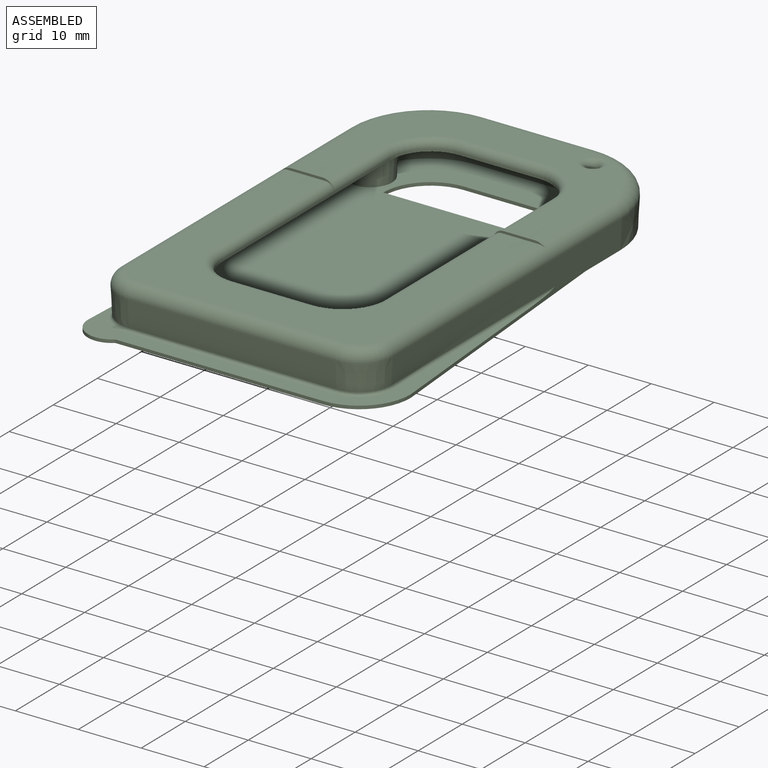
[diagram: assembled view]
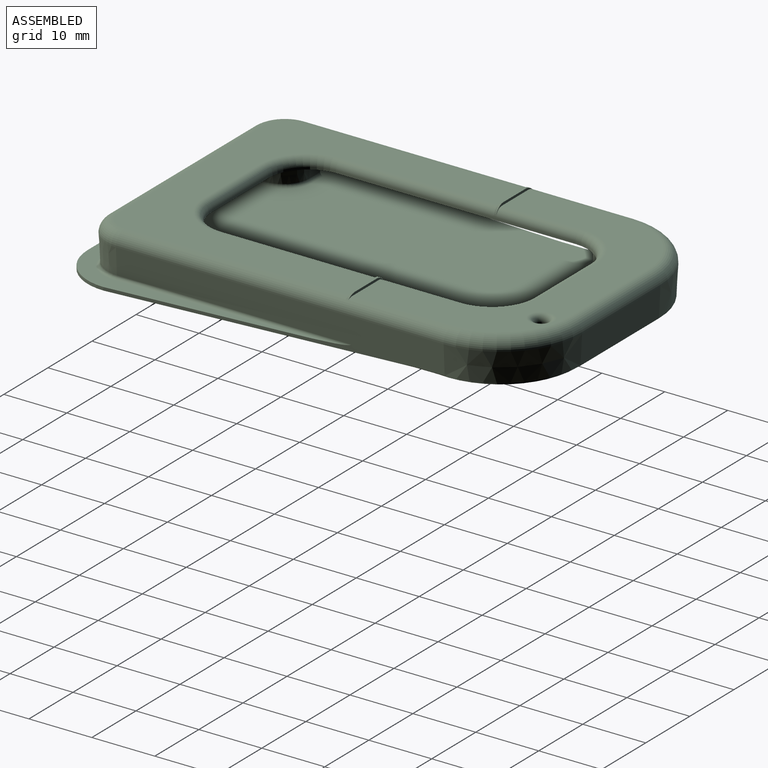
[diagram: assembled view, second angle]
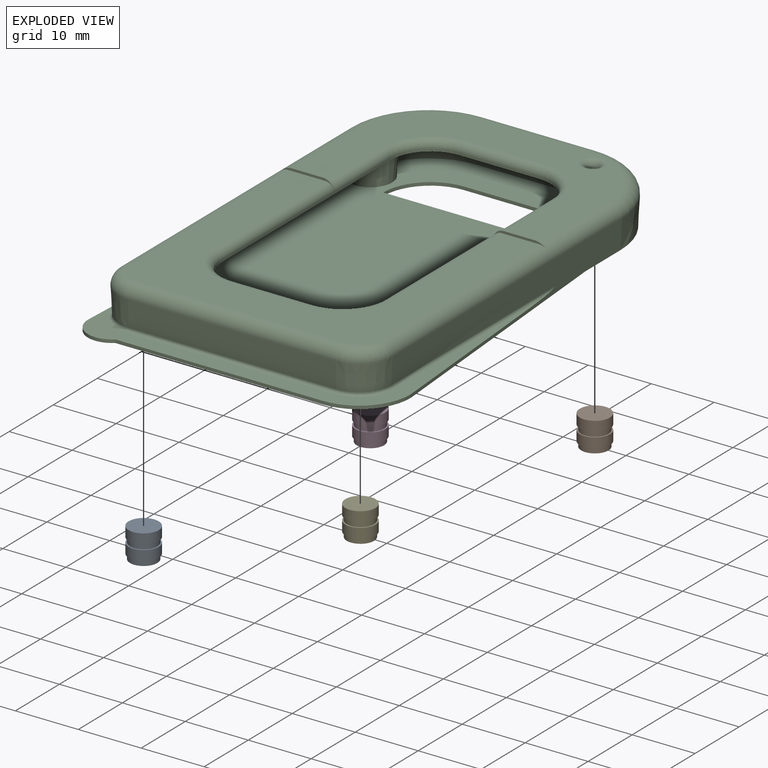
[diagram: exploded view]
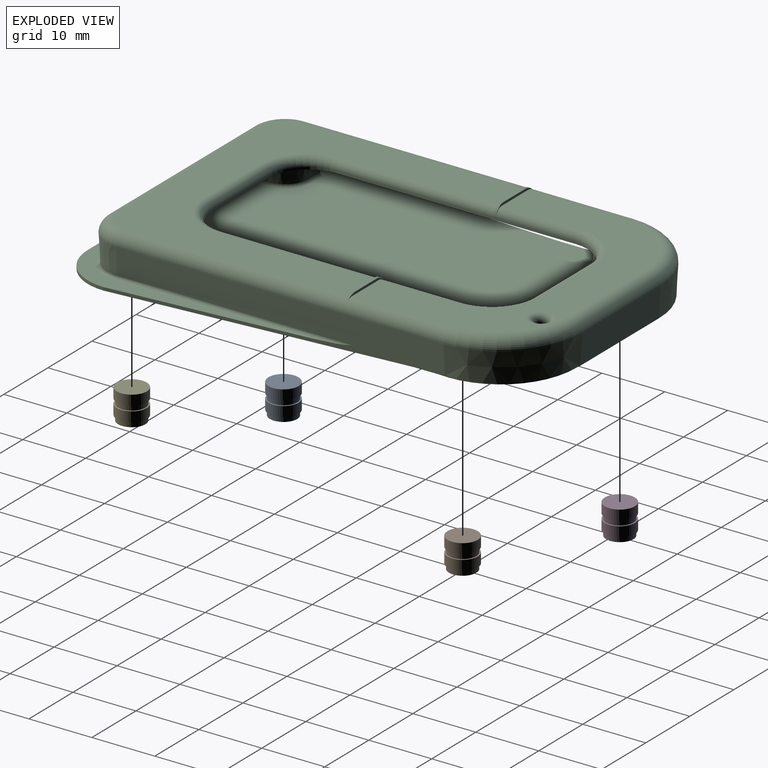
[diagram: exploded view, second angle]
ASSEMBLY  parts=5 mates=4
PART A: 12 faces, bbox 4.8x4.8x4.8 mm
  f0: plane 2.5x2.5mm, normal (0,0,1), area 4.9mm2, adj f10
  f1: plane 4.78x4.78mm, normal (0,0,-1), area 17.9mm2, adj f2
  f2: cylinder r=2.39mm len=4.78mm, axis (0,0,-1), area 23.9mm2, adj f1,f3
  f3: plane 4.78x4.78mm, normal (0,0,1), area 3.2mm2, adj f2,f4
  f4: cylinder r=2.17mm len=4.34mm, axis (0,0,-1), area 10.9mm2, adj f3,f5
  f5: plane 4.78x4.78mm, normal (0,0,-1), area 3.2mm2, adj f4,f6
  f6: cylinder r=2.39mm len=4.78mm, axis (0,0,-1), area 23.9mm2, adj f5,f7
  f7: plane 4.78x4.78mm, normal (0,0,1), area 3.2mm2, adj f6,f8
  f8: cylinder r=2.17mm len=4.34mm, axis (0,0,-1), area 10.9mm2, adj f7,f9
  f9: plane 4.34x4.34mm, normal (0,0,1), area 5.2mm2, adj f8,f11
  f10: cylinder r=1.25mm len=3.7mm, axis (0,0,-1), area 29.1mm2, adj f0,f11
  f11: cone r=1.75mm half-angle=45deg, axis (0,0,1), area 6.7mm2, adj f9,f10
PART B: same geometry as A
PART C: 167 faces, bbox 47.8x75.4x7.7 mm
  f0: plane 39.86x26.85mm, normal (0,0,1), area 464.7mm2, adj f1,f2,f33,f34,f35,f36,f38,f50
  f1: cylinder r=1.27mm len=12.64mm, axis (0,-1,0), area 25.2mm2, adj f0,f48,f51,f147
  f2: cylinder r=1.27mm len=12.64mm, axis (0,1,0), area 25.2mm2, adj f0,f44,f52,f142
  f3: plane 64.82x37.25mm, normal (0,0,-1), area 616.4mm2, adj f61,f63,f91,f92,f93,f94,f95,f96
  f4: plane 73.2x47.61mm, normal (0,0,-1), area 2931.3mm2, adj f69,f70,f71,f72,f73,f75,f76,f77
  f5: plane 71.99x47.61mm, normal (0,0,1), area 2398.9mm2, adj f6,f7,f12,f13,f15,f16,f17,f22
  f6: plane 0.88x0.66mm, normal (-0.4,0.92,0), area 0.1mm2, adj f5,f22,f68
  f7: plane 4.84x2.79mm, normal (-0.4,0.92,0), area 8.7mm2, adj f5,f22,f24,f116,f118
  f8: plane 44.16x2.81mm, normal (0,0,-1), area 123.3mm2, adj f62,f104,f106,f108,f110,f112
  f9: plane 32.83x1.97mm, normal (0,0,-1), area 60.3mm2, adj f11,f15,f23,f84
  f10: plane 15.79x1.97mm, normal (0,0,-1), area 21.7mm2, adj f11,f19,f23,f32,f59,f86
  f11: plane 52.11x3.37mm, normal (-1,0,-0.05), area 161.5mm2, adj f9,f10,f31,f32,f38,f84,f85,f86
  f12: plane 4.32x0.44mm, normal (-1,0,0), area 1.9mm2, adj f5,f80,f81,f83
  f13: plane 4.32x0.44mm, normal (1,0,0), area 1.9mm2, adj f5,f80,f81,f82
  f14: plane 43.18x27.24mm, normal (0,0,-1), area 47.6mm2, adj f15,f28,f29,f30,f31,f73,f74,f75
  f15: cone r=3.44mm half-angle=3deg, axis (0,0,1), area 56.8mm2, adj f5,f9,f14,f23,f31,f67,f117,f119
  f16: cone r=10.79mm half-angle=3deg, axis (0,0,-1), area 53.8mm2, adj f5,f41,f67,f121
  f17: plane 45.25x4.23mm, normal (-1,0,-0.05), area 190.2mm2, adj f5,f65,f66,f108,f132
  f18: cone r=4.07mm half-angle=3deg, axis (0,0,1), area 4mm2, adj f62,f65,f104,f131
  f19: cone r=4.07mm half-angle=3deg, axis (0,0,1), area 5.2mm2, adj f10,f32,f59,f126
  f20: cone r=4.07mm half-angle=3deg, axis (0,0,1), area 24.3mm2, adj f58,f60,f113,f134
  f21: cone r=4.07mm half-angle=3deg, axis (0,0,1), area 10.6mm2, adj f61,f64,f105,f136
  f22: cone r=3.44mm half-angle=3deg, axis (0,0,1), area 44.4mm2, adj f5,f6,f7,f66,f68,f112,f114,f116
  f23: plane 45.49x2.92mm, normal (1,0,0), area 120.4mm2, adj f9,f10,f15,f60,f84,f85,f86,f117
  f24: cone r=10.79mm half-angle=3deg, axis (0,0,-1), area 52.4mm2, adj f5,f7,f41,f118
  f25: plane 39.86x39.3mm, normal (0,0,1), area 672.4mm2, adj f35,f37,f38,f39,f40,f53,f54,f55
  f26: plane 33.02x4.07mm, normal (0,-1,-0.05), area 134.4mm2, adj f27,f32,f39,f128
  f27: cone r=5.08mm half-angle=3deg, axis (0,0,1), area 33.3mm2, adj f26,f28,f37,f129
  f28: plane 52.07x4.6mm, normal (1,0,-0.05), area 219.9mm2, adj f14,f27,f29,f35,f73,f130
  f29: cone r=12.7mm half-angle=3deg, axis (0,0,1), area 92.8mm2, adj f14,f28,f30,f33
  f30: plane 17.78x4.6mm, normal (0,1,-0.05), area 81.9mm2, adj f14,f29,f31,f34
  f31: cone r=12.7mm half-angle=3deg, axis (0,0,1), area 92.8mm2, adj f11,f14,f15,f30,f36
  f32: cone r=5.08mm half-angle=3deg, axis (0,0,1), area 30.4mm2, adj f10,f11,f19,f26,f40,f127
  f33: torus R=11.04mm, axis (0,0,1), area 59.6mm2, adj f0,f29,f34,f35
  f34: cylinder r=1.91mm len=17.78mm, axis (1,0,0), area 55mm2, adj f0,f30,f33,f36
  f35: cylinder r=1.91mm len=52.07mm, axis (0,1,0), area 160.6mm2, adj f0,f25,f28,f33,f37,f144,f146,f147
  f36: torus R=11.04mm, axis (0,0,1), area 59.6mm2, adj f0,f31,f34,f38
  f37: torus R=3.42mm, axis (0,0,1), area 22.6mm2, adj f25,f27,f35,f39
  f38: cylinder r=1.91mm len=52.07mm, axis (0,1,0), area 160.6mm2, adj f0,f11,f25,f36,f40,f138,f141,f142
  f39: cylinder r=1.91mm len=33.02mm, axis (1,0,0), area 102.1mm2, adj f25,f26,f37,f40
  f40: torus R=3.42mm, axis (0,0,1), area 22.6mm2, adj f25,f32,f38,f39
  f41: plane 17.78x4.22mm, normal (0,-1,-0.05), area 75.1mm2, adj f5,f16,f24,f120
  f42: plane 12.7x0.38mm, normal (0,1,0), area 4.8mm2, adj f43,f49,f57,f99
  f43: cylinder r=6.35mm len=6.35mm, axis (0,0,-1), area 3.8mm2, adj f42,f44,f56,f99
  f44: plane 38.1x0.38mm, normal (1,0,0), area 14.5mm2, adj f2,f43,f45,f54,f99,f139
  f45: cylinder r=6.35mm len=6.35mm, axis (0,0,-1), area 3.8mm2, adj f44,f46,f52,f99
  f46: plane 12.7x0.38mm, normal (0,-1,0), area 4.8mm2, adj f45,f47,f50,f99
  f47: cylinder r=6.35mm len=6.35mm, axis (0,0,-1), area 3.8mm2, adj f46,f48,f51,f99
  f48: plane 38.1x0.38mm, normal (-1,0,0), area 14.5mm2, adj f1,f47,f49,f53,f99,f143
  f49: cylinder r=6.35mm len=6.35mm, axis (0,0,-1), area 3.8mm2, adj f42,f48,f55,f99
  f50: cylinder r=1.27mm len=12.7mm, axis (1,0,0), area 25.3mm2, adj f0,f46,f51,f52
  f51: torus R=7.62mm, axis (0,0,1), area 21.3mm2, adj f0,f1,f47,f50
  f52: torus R=7.62mm, axis (0,0,1), area 21.3mm2, adj f0,f2,f45,f50
  f53: cylinder r=1.27mm len=25.08mm, axis (0,-1,0), area 50mm2, adj f25,f48,f55,f146
  f54: cylinder r=1.27mm len=25.08mm, axis (0,1,0), area 50mm2, adj f25,f44,f56,f141
  f55: torus R=7.62mm, axis (0,0,1), area 21.3mm2, adj f25,f49,f53,f57
  f56: torus R=7.62mm, axis (0,0,1), area 21.3mm2, adj f25,f43,f54,f57
  f57: cylinder r=1.27mm len=12.7mm, axis (-1,0,0), area 25.3mm2, adj f25,f42,f55,f56
  f58: plane 3.68x2.72mm, normal (1,0,-0.05), area 10mm2, adj f20,f82,f111,f133
  f59: plane 1.33x1.27mm, normal (-1,0,0), area 1mm2, adj f5,f10,f19,f60,f126,f135
  f60: plane 3.68x2.46mm, normal (0,1,-0.05), area 9.1mm2, adj f20,f23,f59,f115,f117,f135
  f61: plane 46.97x4.84mm, normal (-1,0,0), area 219.2mm2, adj f3,f5,f21,f63,f105,f136
  f62: plane 45.42x4.74mm, normal (1,0,0), area 212.7mm2, adj f5,f8,f18,f63,f104,f112,f131
  f63: plane 4.73x2.2mm, normal (0,1,0), area 10.1mm2, adj f3,f5,f61,f62,f112
  f64: plane 3.68x2.72mm, normal (-1,0,-0.05), area 10mm2, adj f21,f83,f107,f137
  f65: plane 3.68x2.44mm, normal (0,1,-0.05), area 8.6mm2, adj f17,f18,f106,f132
  f66: plane 4.22x2.17mm, normal (0,-1,-0.05), area 8.7mm2, adj f5,f17,f22,f110
  f67: plane 4.7x1.9mm, normal (0.37,0.93,0), area 5.3mm2, adj f5,f15,f16,f119,f121
  f68: plane 0.67x0.07mm, normal (0,-1,0), area 0mm2, adj f5,f6,f22
  f69: plane 45.61x2.01mm, normal (-1,0.04,0), area 23.2mm2, adj f4,f5,f70,f78
  f70: cylinder r=3.87mm len=6.39mm, axis (0,0,1), area 4.6mm2, adj f4,f5,f69,f71
  f71: plane 33.02x0.51mm, normal (0,-1,0), area 16.8mm2, adj f4,f5,f70,f72
  f72: cylinder r=8.19mm len=8.19mm, axis (0,0,1), area 6.5mm2, adj f4,f5,f71,f73
  f73: plane 47.13x3.91mm, normal (1,0.08,0), area 24mm2, adj f4,f5,f14,f28,f72,f74,f79,f130
  f74: plane 6.58x0.38mm, normal (1,0.01,0), area 2.5mm2, adj f14,f73,f75,f79
  f75: cylinder r=12mm len=13.68mm, axis (0,0,1), area 9.7mm2, adj f4,f14,f74,f76,f79
  f76: plane 17.78x0.51mm, normal (0,1,0), area 9mm2, adj f4,f14,f75,f77
  f77: cylinder r=12mm len=12mm, axis (0,0,1), area 9.6mm2, adj f4,f14,f76,f78
  f78: plane 11.54x0.51mm, normal (-1,0,0), area 5.9mm2, adj f4,f5,f14,f69,f77
  f79: cylinder r=0.13mm len=6.58mm, axis (-0.01,1,0), area 1mm2, adj f4,f73,f74,f75
  f80: plane 10.92x4.32mm, normal (0,1,0), area 47.2mm2, adj f5,f12,f13,f81
  f81: plane 25.82x0.7mm, normal (0,0,-1), area 11.4mm2, adj f12,f13,f80,f82,f83,f107,f109,f111
  f82: plane 7.66x4.32mm, normal (0,1,0), area 32.6mm2, adj f5,f13,f58,f81,f111,f133
  f83: plane 7.66x4.32mm, normal (0,1,0), area 32.6mm2, adj f5,f12,f64,f81,f107,f137
  f84: cylinder r=2.16mm len=2.15mm, axis (1,0,0), area 6.5mm2, adj f9,f11,f23,f85
  f85: plane 2.79x2.08mm, normal (0,0,-1), area 5.8mm2, adj f11,f23,f84,f86
  f86: cylinder r=2.16mm len=2.15mm, axis (1,0,0), area 6.5mm2, adj f10,f11,f23,f85
  f87: cone r=0.7mm half-angle=3deg, axis (0,0,1), area 6.3mm2, adj f123,f125
  f88: plane 0.17x0.17mm, normal (0,0,-1), area 0mm2, adj f125
  f89: cone r=0.7mm half-angle=3deg, axis (0,0,1), area 6.3mm2, adj f122,f124
  f90: plane 0.17x0.17mm, normal (0,0,-1), area 0mm2, adj f124
  f91: plane 12.7x0.25mm, normal (0,1,0), area 3.2mm2, adj f3,f92,f98,f99
  f92: cylinder r=7.52mm len=7.52mm, axis (0,0,-1), area 3mm2, adj f3,f91,f93,f99
  f93: plane 38.1x0.25mm, normal (1,0,0), area 9.7mm2, adj f3,f92,f94,f99
  f94: cylinder r=7.52mm len=7.52mm, axis (0,0,-1), area 3mm2, adj f3,f93,f95,f99
  f95: plane 12.7x0.25mm, normal (0,-1,0), area 3.2mm2, adj f3,f94,f96,f99
  f96: cylinder r=7.52mm len=7.52mm, axis (0,0,-1), area 3mm2, adj f3,f95,f97,f99,f114
  f97: plane 38.1x0.25mm, normal (-1,0,0), area 9.7mm2, adj f3,f96,f98,f99
  f98: cylinder r=7.52mm len=7.52mm, axis (0,0,-1), area 3mm2, adj f3,f91,f97,f99
  f99: plane 53.14x27.74mm, normal (0,0,-1), area 169.6mm2, adj f42,f43,f44,f45,f46,f47,f48,f49
  f100: plane 12.7x0.51mm, normal (0,-1,0), area 6.5mm2, adj f4,f5,f101,f103
  f101: cylinder r=7.52mm len=7.52mm, axis (0,0,1), area 6mm2, adj f4,f5,f100,f102
  f102: plane 27.74x0.51mm, normal (0,1,0), area 14.1mm2, adj f4,f5,f101,f103
  f103: cylinder r=7.52mm len=7.52mm, axis (0,0,1), area 6mm2, adj f4,f5,f100,f102
  f104: torus R=4.8mm, axis (0,0,1), area 0.8mm2, adj f8,f18,f62,f106
  f105: torus R=4.8mm, axis (0,0,1), area 2.7mm2, adj f3,f21,f61,f107
  f106: cylinder r=0.51mm len=2.24mm, axis (-1,0,0), area 1.5mm2, adj f8,f65,f104,f108
  f107: cylinder r=0.51mm len=2.72mm, axis (0,1,0), area 1.8mm2, adj f3,f64,f81,f83,f105,f109
  f108: cylinder r=0.51mm len=44.82mm, axis (0,1,0), area 34.2mm2, adj f8,f17,f106,f110
  f109: cylinder r=0.51mm len=25.82mm, axis (1,0,0), area 17mm2, adj f3,f81,f107,f111
  f110: cylinder r=0.51mm len=1.95mm, axis (-1,0,0), area 1.3mm2, adj f8,f66,f108,f112
  f111: cylinder r=0.51mm len=2.72mm, axis (0,1,0), area 1.8mm2, adj f3,f58,f81,f82,f109,f113
  f112: torus R=4.17mm, axis (0,0,1), area 3.1mm2, adj f3,f8,f22,f62,f63,f110,f114
  f113: torus R=4.8mm, axis (0,0,1), area 5.4mm2, adj f3,f20,f111,f115
  f114: bspline ~1.72x0.98mm, area 0.9mm2, adj f22,f96,f112,f116
  f115: cylinder r=0.51mm len=2.46mm, axis (1,0,0), area 1.7mm2, adj f3,f60,f113,f117
  f116: torus R=4.17mm, axis (0,0,1), area 5.2mm2, adj f3,f7,f22,f114,f118
  f117: cylinder r=0.51mm len=45.16mm, axis (0,1,0), area 35.7mm2, adj f3,f15,f23,f60,f115,f119
  f118: torus R=10.07mm, axis (0,0,1), area 9.3mm2, adj f3,f7,f24,f116,f120
  f119: torus R=4.17mm, axis (0,0,1), area 10.5mm2, adj f3,f15,f67,f117,f121
  f120: cylinder r=0.51mm len=17.78mm, axis (1,0,0), area 13.7mm2, adj f3,f41,f118,f121
  f121: torus R=10.07mm, axis (0,0,1), area 9.5mm2, adj f3,f16,f67,f119,f120
  f122: torus R=1.18mm, axis (0,0,1), area 4.2mm2, adj f3,f89
  f123: torus R=1.18mm, axis (0,0,1), area 4.2mm2, adj f3,f87
  f124: torus R=0.08mm, axis (0,0,-1), area 1.9mm2, adj f89,f90
  f125: torus R=0.08mm, axis (0,0,-1), area 1.9mm2, adj f87,f88
  f126: torus R=4.61mm, axis (0,0,-1), area 6.2mm2, adj f5,f19,f59,f127
  f127: torus R=5.62mm, axis (0,0,-1), area 3.4mm2, adj f5,f32,f126,f128
  f128: cylinder r=0.51mm len=33.02mm, axis (-1,0,0), area 27.2mm2, adj f5,f26,f127,f129
  f129: torus R=5.62mm, axis (0,0,-1), area 6.8mm2, adj f5,f27,f128,f130
  f130: cylinder r=0.51mm len=37.2mm, axis (0,-1,0), area 28.9mm2, adj f5,f28,f73,f129
  f131: torus R=4.61mm, axis (0,0,-1), area 0.9mm2, adj f5,f18,f62,f132
  f132: cylinder r=0.51mm len=2.46mm, axis (-1,0,0), area 2mm2, adj f5,f17,f65,f131
  f133: cylinder r=0.51mm len=2.72mm, axis (0,1,0), area 2.2mm2, adj f5,f58,f82,f134
  f134: torus R=4.61mm, axis (0,0,-1), area 5.5mm2, adj f5,f20,f133,f135
  f135: cylinder r=0.51mm len=2.46mm, axis (1,0,0), area 2mm2, adj f5,f59,f60,f134
  f136: torus R=4.61mm, axis (0,0,-1), area 2.5mm2, adj f5,f21,f61,f137
  f137: cylinder r=0.51mm len=2.72mm, axis (0,1,0), area 2.2mm2, adj f5,f64,f83,f136
  f138: cylinder r=2.29mm len=1.59mm, axis (0,1,0), area 0.7mm2, adj f38,f140,f141,f142
  f139: cylinder r=1.65mm len=1.65mm, axis (0,1,0), area 1mm2, adj f44,f140,f141,f142
  f140: plane 4.95x0.38mm, normal (0,0,1), area 1.9mm2, adj f138,f139,f141,f142
  f141: plane 8.19x1.65mm, normal (0,-1,0), area 2.6mm2, adj f25,f38,f54,f138,f139,f140
  f142: plane 8.19x1.65mm, normal (0,1,0), area 2.6mm2, adj f0,f2,f38,f138,f139,f140
  f143: cylinder r=1.65mm len=1.65mm, axis (0,1,0), area 1mm2, adj f48,f145,f146,f147
  f144: cylinder r=2.29mm len=1.59mm, axis (0,1,0), area 0.7mm2, adj f35,f145,f146,f147
  f145: plane 4.95x0.38mm, normal (0,0,1), area 1.9mm2, adj f143,f144,f146,f147
  f146: plane 8.19x1.65mm, normal (0,-1,0), area 2.6mm2, adj f25,f35,f53,f143,f144,f145
  f147: plane 8.19x1.65mm, normal (0,1,0), area 2.6mm2, adj f0,f1,f35,f143,f144,f145
  f148: cylinder r=0.95mm len=1.91mm, axis (0,0,-1), area 5.3mm2, adj f3,f149
  f149: torus R=1.97mm, axis (0,0,1), area 13.3mm2, adj f0,f148
  f150: plane 4.34x4.34mm, normal (0,0,-1), area 14.8mm2, adj f151
  f151: cylinder r=2.17mm len=4.7mm, axis (0,0,1), area 64.1mm2, adj f150,f152
  f152: plane 4.34x4.34mm, normal (0,0,1), area 14.8mm2, adj f151
  f153: plane 4.34x4.34mm, normal (0,0,-1), area 14.8mm2, adj f154
  f154: cylinder r=2.17mm len=4.7mm, axis (0,0,1), area 64.1mm2, adj f153,f155
  f155: plane 4.34x4.34mm, normal (0,0,1), area 14.8mm2, adj f154
  f156: plane 4.34x3.71mm, normal (0,0,1), area 13.4mm2, adj f158,f159,f160
  f157: plane 4.34x2.98mm, normal (0,0,-1), area 10.7mm2, adj f160,f161,f162
  f158: plane 4.34x1.85mm, normal (1,0,-0.05), area 6.9mm2, adj f156,f159,f160,f161
  f159: cone r=10.79mm half-angle=3deg, axis (0,0,-1), area 7.4mm2, adj f156,f158,f160,f162
  f160: cylinder r=2.17mm len=4.7mm, axis (0,0,1), area 45.4mm2, adj f156,f157,f158,f159,f161,f162
  f161: cylinder r=0.51mm len=2.01mm, axis (0,1,0), area 1.4mm2, adj f157,f158,f160,f162
  f162: torus R=10.07mm, axis (0,0,1), area 1.5mm2, adj f157,f159,f160,f161
  f163: plane 4.34x3.25mm, normal (0,0,1), area 11.9mm2, adj f165,f166
  f164: plane 4.34x3.25mm, normal (0,0,-1), area 11.9mm2, adj f165,f166
  f165: plane 4.7x3.77mm, normal (1,0,0), area 17.7mm2, adj f163,f164,f166
  f166: cylinder r=2.17mm len=4.7mm, axis (0,0,1), area 42.6mm2, adj f163,f164,f165
PART D: same geometry as A
PART E: same geometry as A
PLACE A rot(axis=(1,0,0),180deg) t=(-17.2,-30.6,0.68)mm
PLACE B rot(axis=(1,0,0),180deg) t=(17.54,22.19,0.68)mm
PLACE C t=(0.02,-0.04,-2.75)mm fixed
PLACE D rot(axis=(1,0,0),180deg) t=(-18.13,22.19,0.68)mm
PLACE E rot(axis=(1,0,0),180deg) t=(17.24,-30.6,0.68)mm
MATE fastened B.f2 <-> C.f22  axis (0,0,1) through (17.54,22.19,0.68)mm
MATE fastened A.f2 <-> C.f19  axis (0,0,1) through (-17.2,-30.6,0.68)mm
MATE fastened E.f2 <-> C.f18  axis (0,0,1) through (17.24,-30.6,0.68)mm
MATE fastened C.f15 <-> D.f2  axis (0,0,-1) through (-18.13,22.19,0.68)mm
